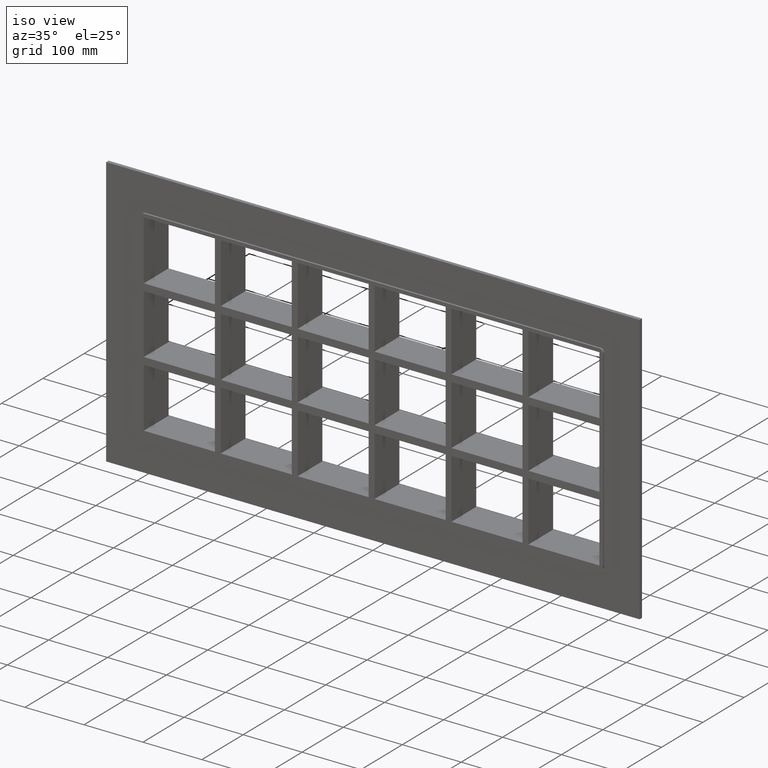
[diagram: clean part render]
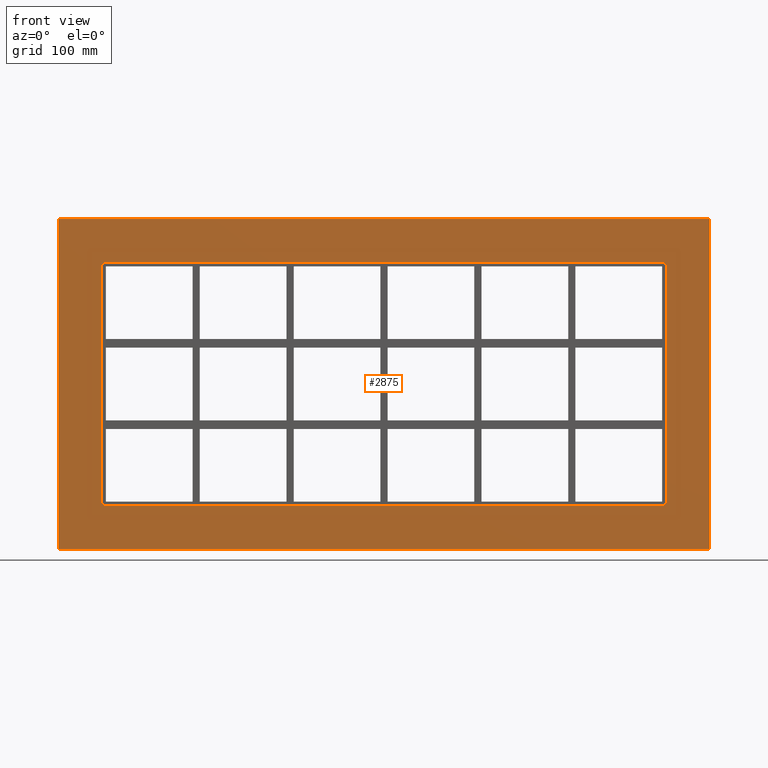
[diagram: tour spotlight — one face highlighted and labeled with its STEP entity id]
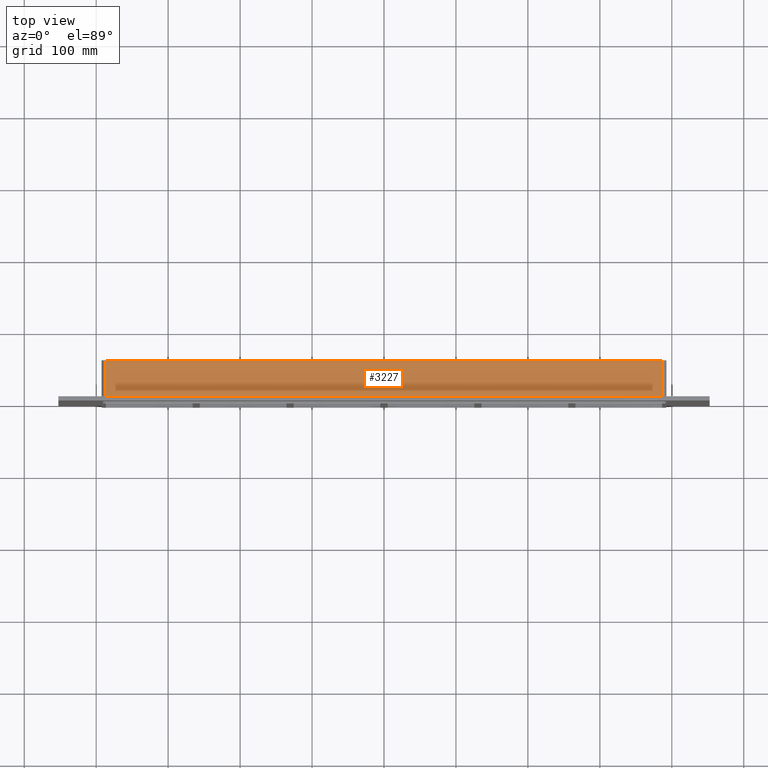
[diagram: tour spotlight — one face highlighted and labeled with its STEP entity id]
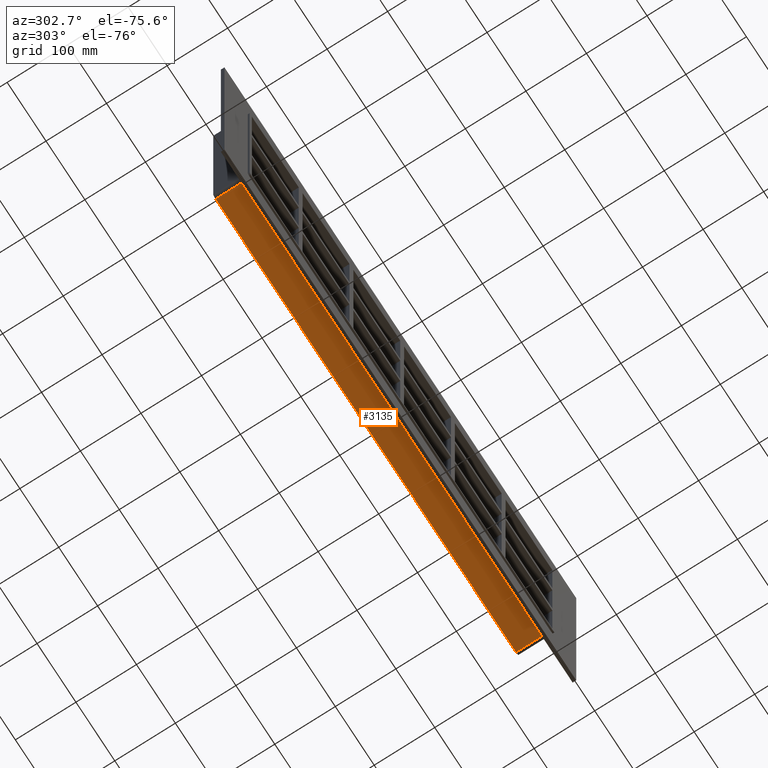
[diagram: tour spotlight — one face highlighted and labeled with its STEP entity id]
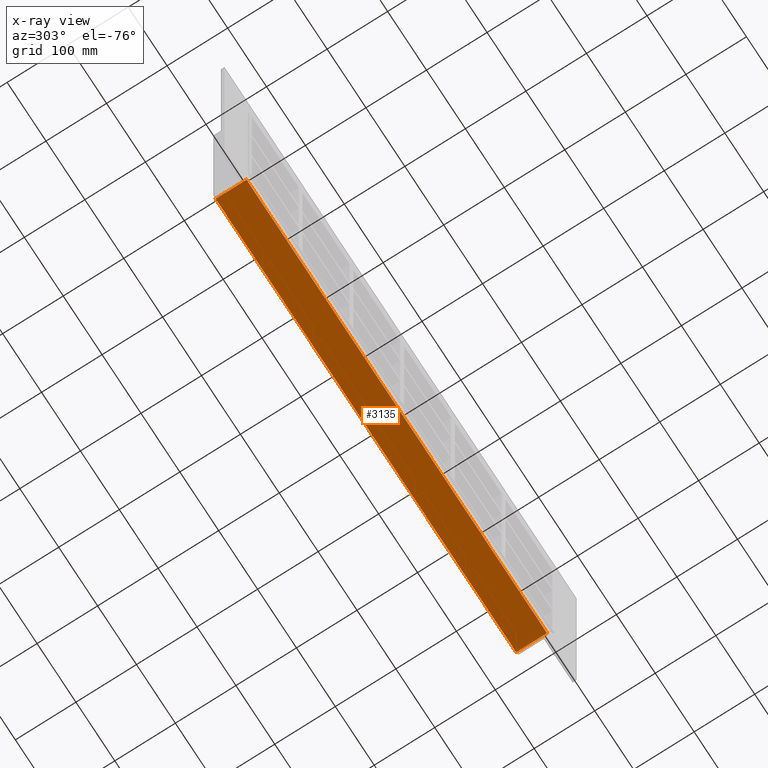
[diagram: x-ray of the same camera — body ghosted, this tour face saturated]
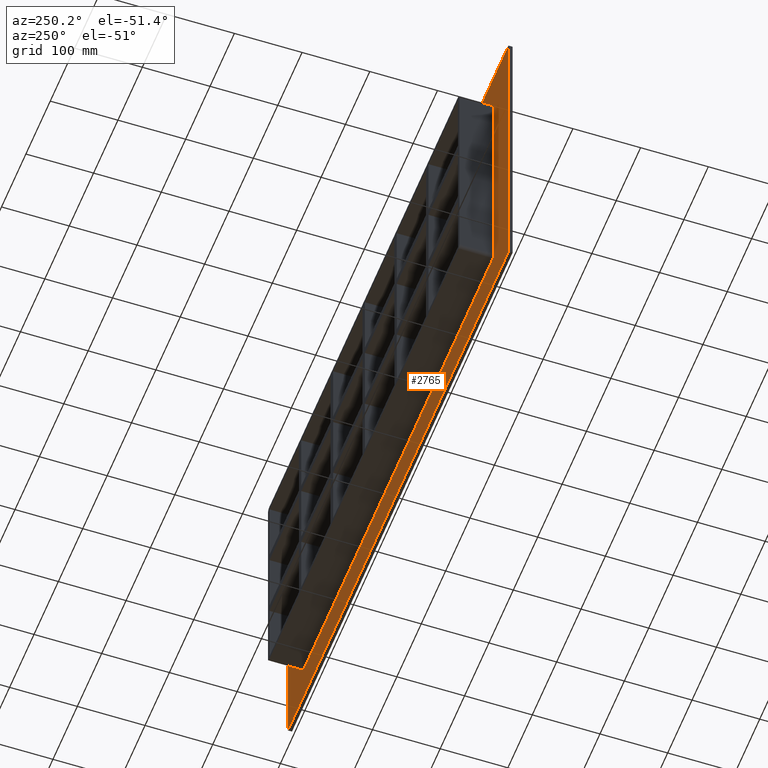
[diagram: tour spotlight — one face highlighted and labeled with its STEP entity id]
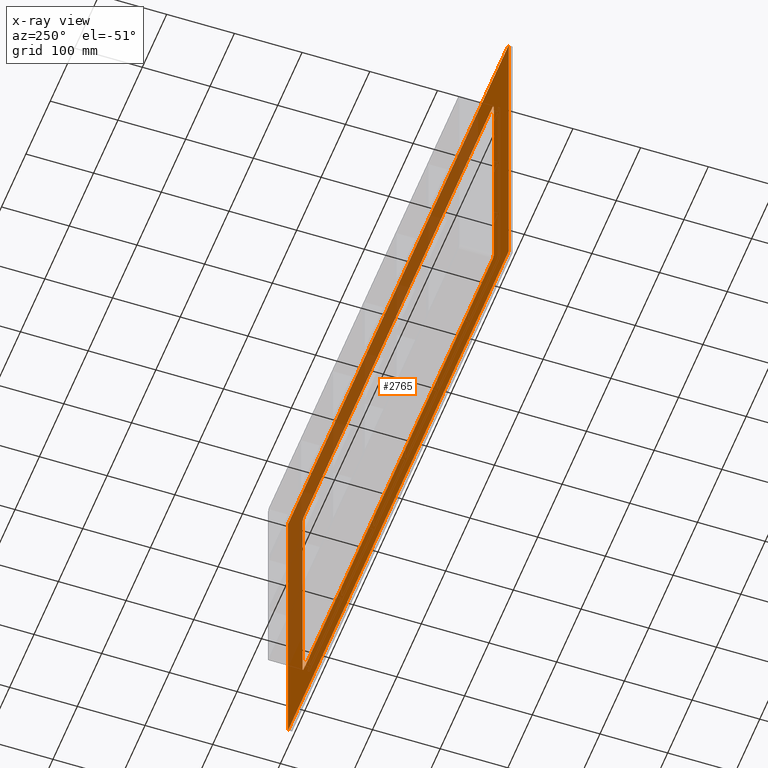
[diagram: x-ray of the same camera — body ghosted, this tour face saturated]
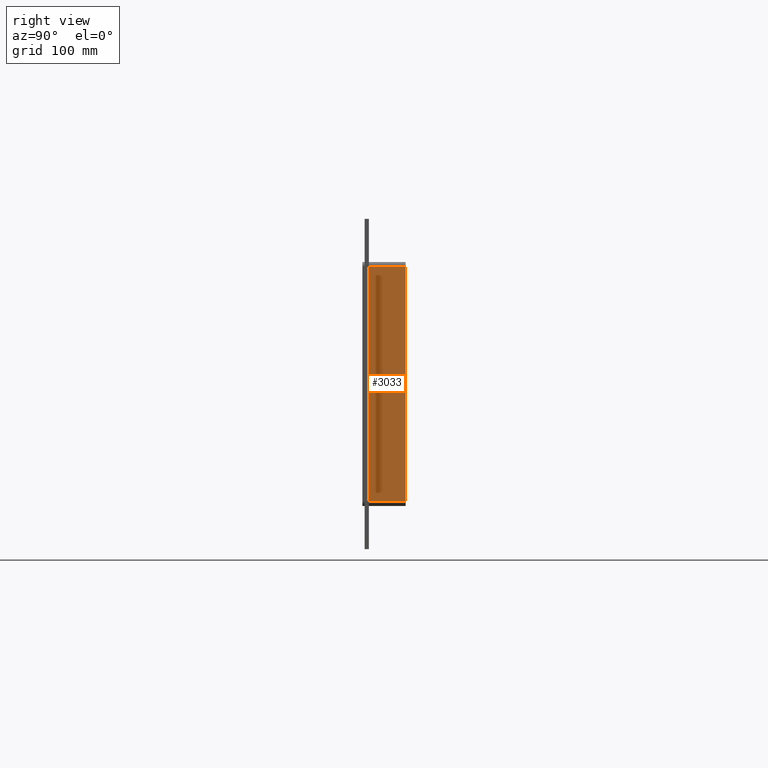
[diagram: tour spotlight — one face highlighted and labeled with its STEP entity id]
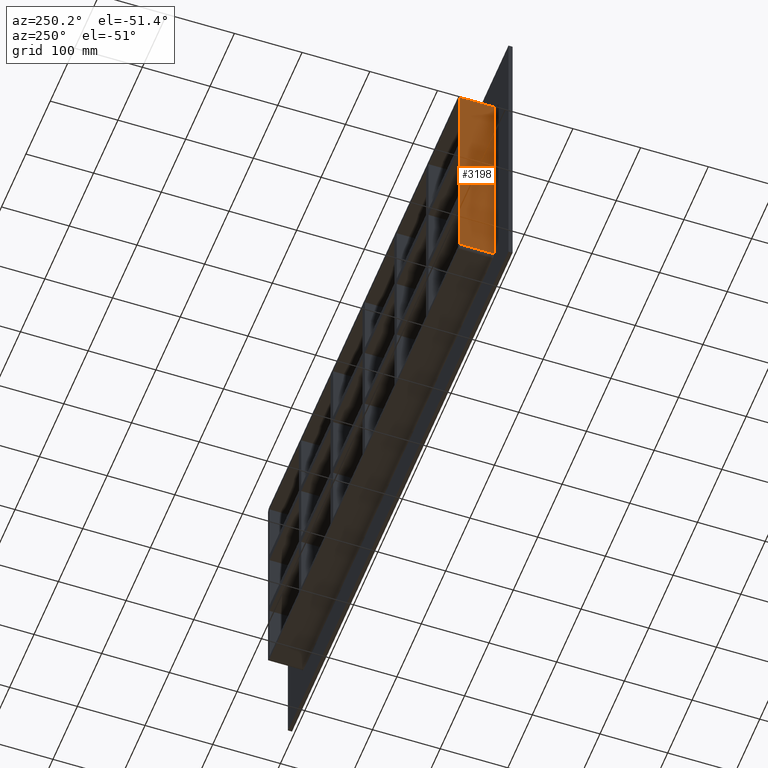
[diagram: tour spotlight — one face highlighted and labeled with its STEP entity id]
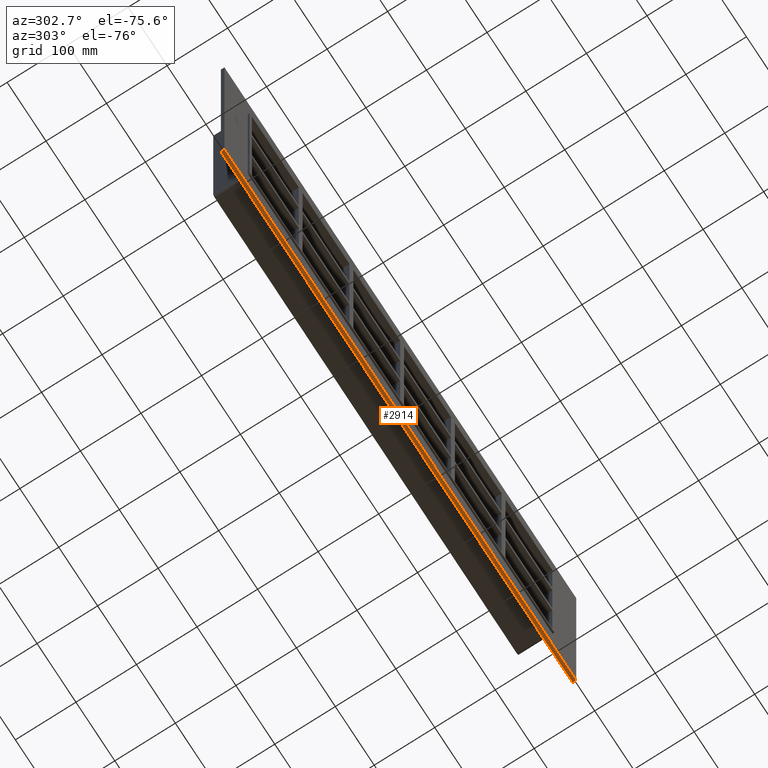
[diagram: tour spotlight — one face highlighted and labeled with its STEP entity id]
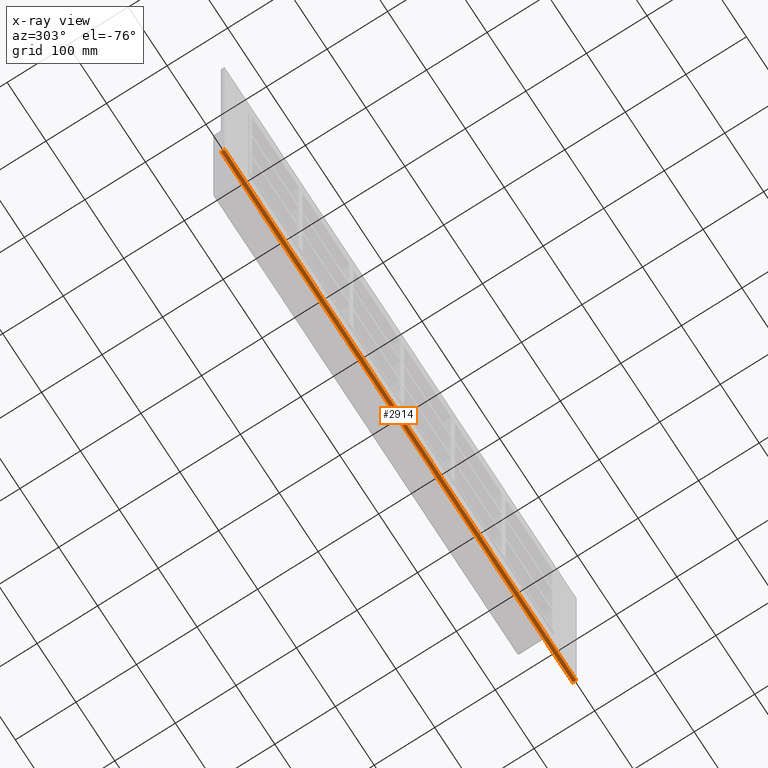
[diagram: x-ray of the same camera — body ghosted, this tour face saturated]
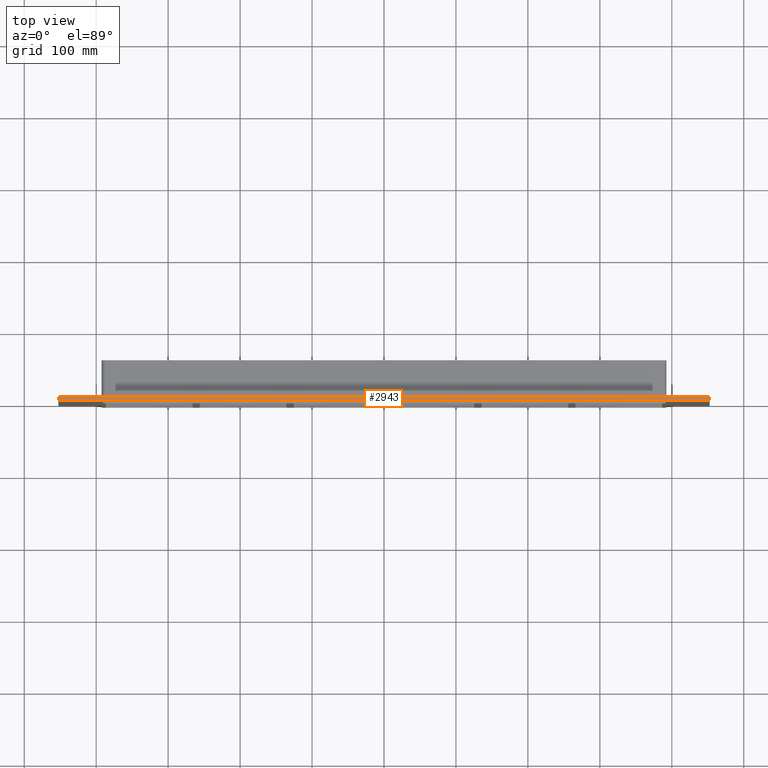
[diagram: tour spotlight — one face highlighted and labeled with its STEP entity id]
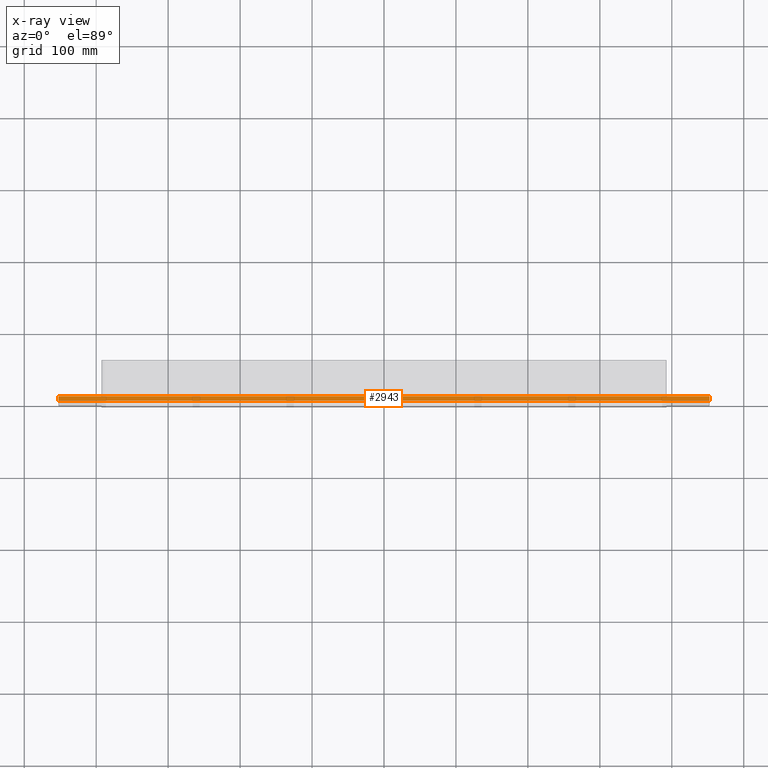
[diagram: x-ray of the same camera — body ghosted, this tour face saturated]
A machine part: a face-by-face anatomy tour. The part has 96 B-rep faces; the first image is the clean iso view, then the 8 largest visible faces are spotlighted one at a time (largest first), each with its STEP entity span.

Face 1 — front view, entity #2875. In plain terms, the highlighted planar face has unit normal (0, 1, 0).
Definition (entity closure, byte-faithful):
#2766=CARTESIAN_POINT('',(0.0,0.0,0.0));
#2767=DIRECTION('',(0.0,1.0,0.0));
#2768=DIRECTION('',(0.0,0.0,1.0));
#2769=AXIS2_PLACEMENT_3D('',#2766,#2767,#2768);
#2770=PLANE('',#2769);
#2771=CARTESIAN_POINT('',(-452.50000000000006,0.0,229.50000000000003));
#2772=VERTEX_POINT('',#2771);
#2773=CARTESIAN_POINT('',(452.50000000000006,0.0,229.50000000000003));
#2774=VERTEX_POINT('',#2773);
#2775=CARTESIAN_POINT('',(-452.50000000000006,0.0,229.50000000000003));
#2776=DIRECTION('',(1.0,0.0,0.0));
#2777=VECTOR('',#2776,905.00000000000011);
#2778=LINE('',#2775,#2777);
#2779=EDGE_CURVE('',#2772,#2774,#2778,.T.);
#2780=ORIENTED_EDGE('',*,*,#2779,.F.);
#2781=CARTESIAN_POINT('',(-452.50000000000006,0.0,-229.50000000000003));
#2782=VERTEX_POINT('',#2781);
#2783=CARTESIAN_POINT('',(-452.50000000000006,0.0,-229.50000000000003));
#2784=DIRECTION('',(0.0,0.0,1.0));
#2785=VECTOR('',#2784,459.00000000000006);
#2786=LINE('',#2783,#2785);
#2787=EDGE_CURVE('',#2782,#2772,#2786,.T.);
#2788=ORIENTED_EDGE('',*,*,#2787,.F.);
#2789=CARTESIAN_POINT('',(452.50000000000006,0.0,-229.50000000000003));
#2790=VERTEX_POINT('',#2789);
#2791=CARTESIAN_POINT('',(452.50000000000006,0.0,-229.50000000000003));
#2792=DIRECTION('',(-1.0,0.0,0.0));
#2793=VECTOR('',#2792,905.00000000000011);
#2794=LINE('',#2791,#2793);
#2795=EDGE_CURVE('',#2790,#2782,#2794,.T.);
#2796=ORIENTED_EDGE('',*,*,#2795,.F.);
#2797=CARTESIAN_POINT('',(452.50000000000006,0.0,229.50000000000003));
#2798=DIRECTION('',(0.0,0.0,-1.0));
#2799=VECTOR('',#2798,459.00000000000006);
#2800=LINE('',#2797,#2799);
#2801=EDGE_CURVE('',#2774,#2790,#2800,.T.);
#2802=ORIENTED_EDGE('',*,*,#2801,.F.);
#2803=EDGE_LOOP('',(#2780,#2788,#2796,#2802));
#2804=FACE_OUTER_BOUND('',#2803,.T.);
#2805=CARTESIAN_POINT('',(-392.50000000000011,0.0,-163.5));
#2806=VERTEX_POINT('',#2805);
#2807=CARTESIAN_POINT('',(-386.50000000000011,0.0,-169.50000000000003));
#2808=VERTEX_POINT('',#2807);
#2809=CARTESIAN_POINT('',(-386.50000000000011,0.0,-163.5));
#2810=DIRECTION('',(0.0,-1.0,0.0));
#2811=DIRECTION('',(-0.707106781186552,0.0,-0.707106781186543));
#2812=AXIS2_PLACEMENT_3D('',#2809,#2810,#2811);
#2813=CIRCLE('',#2812,6.0);
#2814=EDGE_CURVE('',#2806,#2808,#2813,.T.);
#2815=ORIENTED_EDGE('',*,*,#2814,.F.);
#2816=CARTESIAN_POINT('',(-392.50000000000011,0.0,163.5));
#2817=VERTEX_POINT('',#2816);
#2818=CARTESIAN_POINT('',(-392.50000000000011,0.0,163.5));
#2819=DIRECTION('',(0.0,0.0,-1.0));
#2820=VECTOR('',#2819,327.0);
#2821=LINE('',#2818,#2820);
#2822=EDGE_CURVE('',#2817,#2806,#2821,.T.);
#2823=ORIENTED_EDGE('',*,*,#2822,.F.);
#2824=CARTESIAN_POINT('',(-386.50000000000023,0.0,169.50000000000003));
#2825=VERTEX_POINT('',#2824);
#2826=CARTESIAN_POINT('',(-386.50000000000023,0.0,163.5));
#2827=DIRECTION('',(0.0,-1.0,0.0));
#2828=DIRECTION('',(-0.707106781186543,0.0,0.707106781186552));
#2829=AXIS2_PLACEMENT_3D('',#2826,#2827,#2828);
#2830=CIRCLE('',#2829,6.000000000000001);
#2831=EDGE_CURVE('',#2825,#2817,#2830,.T.);
#2832=ORIENTED_EDGE('',*,*,#2831,.F.);
#2833=CARTESIAN_POINT('',(386.50000000000006,0.0,169.50000000000003));
#2834=VERTEX_POINT('',#2833);
#2835=CARTESIAN_POINT('',(386.50000000000006,0.0,169.50000000000003));
#2836=DIRECTION('',(-1.0,0.0,0.0));
#2837=VECTOR('',#2836,773.00000000000023);
#2838=LINE('',#2835,#2837);
#2839=EDGE_CURVE('',#2834,#2825,#2838,.T.);
#2840=ORIENTED_EDGE('',*,*,#2839,.F.);
#2841=CARTESIAN_POINT('',(392.50000000000006,0.0,163.5));
#2842=VERTEX_POINT('',#2841);
#2843=CARTESIAN_POINT('',(386.50000000000006,0.0,163.5));
#2844=DIRECTION('',(0.0,-1.0,0.0));
#2845=DIRECTION('',(0.707106781186543,0.0,0.707106781186552));
#2846=AXIS2_PLACEMENT_3D('',#2843,#2844,#2845);
#2847=CIRCLE('',#2846,6.000000000000001);
#2848=EDGE_CURVE('',#2842,#2834,#2847,.T.);
#2849=ORIENTED_EDGE('',*,*,#2848,.F.);
#2850=CARTESIAN_POINT('',(392.50000000000006,0.0,-163.5));
#2851=VERTEX_POINT('',#2850);
#2852=CARTESIAN_POINT('',(392.50000000000006,0.0,-163.5));
#2853=DIRECTION('',(0.0,0.0,1.0));
#2854=VECTOR('',#2853,327.0);
#2855=LINE('',#2852,#2854);
#2856=EDGE_CURVE('',#2851,#2842,#2855,.T.);
#2857=ORIENTED_EDGE('',*,*,#2856,.F.);
#2858=CARTESIAN_POINT('',(386.50000000000006,0.0,-169.50000000000003));
#2859=VERTEX_POINT('',#2858);
#2860=CARTESIAN_POINT('',(386.50000000000006,0.0,-163.5));
#2861=DIRECTION('',(0.0,-1.0,0.0));
#2862=DIRECTION('',(0.707106781186543,0.0,-0.707106781186552));
#2863=AXIS2_PLACEMENT_3D('',#2860,#2861,#2862);
#2864=CIRCLE('',#2863,6.000000000000001);
#2865=EDGE_CURVE('',#2859,#2851,#2864,.T.);
#2866=ORIENTED_EDGE('',*,*,#2865,.F.);
#2867=CARTESIAN_POINT('',(-386.50000000000023,0.0,-169.50000000000003));
#2868=DIRECTION('',(1.0,0.0,0.0));
#2869=VECTOR('',#2868,773.00000000000023);
#2870=LINE('',#2867,#2869);
#2871=EDGE_CURVE('',#2808,#2859,#2870,.T.);
#2872=ORIENTED_EDGE('',*,*,#2871,.F.);
#2873=EDGE_LOOP('',(#2815,#2823,#2832,#2840,#2849,#2857,#2866,#2872));
#2874=FACE_BOUND('',#2873,.T.);
#2875=ADVANCED_FACE('',(#2804,#2874),#2770,.F.);

Face 2 — top view, entity #3227. In plain terms, the highlighted planar face has unit normal (0, 0, 1).
Definition (entity closure, byte-faithful):
#1023=CARTESIAN_POINT('',(-386.50000000000023,57.0,169.50000000000003));
#1024=VERTEX_POINT('',#1023);
#1032=CARTESIAN_POINT('',(386.50000000000011,57.0,169.50000000000003));
#1033=VERTEX_POINT('',#1032);
#1034=CARTESIAN_POINT('',(-386.50000000000023,57.0,169.50000000000003));
#1035=DIRECTION('',(1.0,0.0,0.0));
#1036=VECTOR('',#1035,773.00000000000034);
#1037=LINE('',#1034,#1036);
#1038=EDGE_CURVE('',#1024,#1033,#1037,.T.);
#2731=CARTESIAN_POINT('',(386.50000000000006,6.000000000000001,169.50000000000003));
#2732=VERTEX_POINT('',#2731);
#2740=CARTESIAN_POINT('',(-386.50000000000023,6.000000000000001,169.50000000000003));
#2741=VERTEX_POINT('',#2740);
#2742=CARTESIAN_POINT('',(-386.50000000000017,6.000000000000001,169.50000000000003));
#2743=DIRECTION('',(1.0,0.0,0.0));
#2744=VECTOR('',#2743,773.00000000000023);
#2745=LINE('',#2742,#2744);
#2746=EDGE_CURVE('',#2741,#2732,#2745,.T.);
#2991=CARTESIAN_POINT('',(386.50000000000006,57.0,169.50000000000003));
#2992=DIRECTION('',(0.0,-1.0,0.0));
#2993=VECTOR('',#2992,51.0);
#2994=LINE('',#2991,#2993);
#2995=EDGE_CURVE('',#1033,#2732,#2994,.T.);
#3205=CARTESIAN_POINT('',(-386.50000000000023,6.000000000000001,169.50000000000003));
#3206=DIRECTION('',(0.0,1.0,0.0));
#3207=VECTOR('',#3206,51.0);
#3208=LINE('',#3205,#3207);
#3209=EDGE_CURVE('',#2741,#1024,#3208,.T.);
#3216=CARTESIAN_POINT('',(-392.50000000000011,0.0,169.50000000000003));
#3217=DIRECTION('',(0.0,0.0,1.0));
#3218=DIRECTION('',(1.0,0.0,0.0));
#3219=AXIS2_PLACEMENT_3D('',#3216,#3217,#3218);
#3220=PLANE('',#3219);
#3221=ORIENTED_EDGE('',*,*,#2746,.T.);
#3222=ORIENTED_EDGE('',*,*,#2995,.F.);
#3223=ORIENTED_EDGE('',*,*,#1038,.F.);
#3224=ORIENTED_EDGE('',*,*,#3209,.F.);
#3225=EDGE_LOOP('',(#3221,#3222,#3223,#3224));
#3226=FACE_OUTER_BOUND('',#3225,.T.);
#3227=ADVANCED_FACE('',(#3226),#3220,.T.);

Face 3 — auxiliary view, entity #3135. An x-ray twin of the same camera follows (body ghosted, this face saturated) — the face is partly hidden behind the body. In plain terms, the highlighted planar face has unit normal (0, 0, -1).
Definition (entity closure, byte-faithful):
#987=CARTESIAN_POINT('',(386.50000000000006,57.0,-169.50000000000003));
#988=VERTEX_POINT('',#987);
#998=CARTESIAN_POINT('',(-386.50000000000023,57.0,-169.50000000000003));
#999=VERTEX_POINT('',#998);
#1000=CARTESIAN_POINT('',(386.5,57.0,-169.50000000000003));
#1001=DIRECTION('',(-1.0,0.0,0.0));
#1002=VECTOR('',#1001,773.00000000000023);
#1003=LINE('',#1000,#1002);
#1004=EDGE_CURVE('',#988,#999,#1003,.T.);
#2695=CARTESIAN_POINT('',(-386.50000000000011,6.000000000000001,-169.50000000000003));
#2696=VERTEX_POINT('',#2695);
#2706=CARTESIAN_POINT('',(386.50000000000006,6.000000000000001,-169.50000000000003));
#2707=VERTEX_POINT('',#2706);
#2708=CARTESIAN_POINT('',(386.50000000000006,6.000000000000001,-169.50000000000003));
#2709=DIRECTION('',(-1.0,0.0,0.0));
#2710=VECTOR('',#2709,773.00000000000023);
#2711=LINE('',#2708,#2710);
#2712=EDGE_CURVE('',#2707,#2696,#2711,.T.);
#3074=CARTESIAN_POINT('',(386.50000000000006,6.000000000000001,-169.50000000000003));
#3075=DIRECTION('',(0.0,1.0,0.0));
#3076=VECTOR('',#3075,51.0);
#3077=LINE('',#3074,#3076);
#3078=EDGE_CURVE('',#2707,#988,#3077,.T.);
#3119=CARTESIAN_POINT('',(392.50000000000006,0.0,-169.50000000000003));
#3120=DIRECTION('',(0.0,0.0,-1.0));
#3121=DIRECTION('',(-1.0,0.0,0.0));
#3122=AXIS2_PLACEMENT_3D('',#3119,#3120,#3121);
#3123=PLANE('',#3122);
#3124=ORIENTED_EDGE('',*,*,#2712,.T.);
#3125=CARTESIAN_POINT('',(-386.50000000000011,57.0,-169.50000000000003));
#3126=DIRECTION('',(0.0,-1.0,0.0));
#3127=VECTOR('',#3126,51.0);
#3128=LINE('',#3125,#3127);
#3129=EDGE_CURVE('',#999,#2696,#3128,.T.);
#3130=ORIENTED_EDGE('',*,*,#3129,.F.);
#3131=ORIENTED_EDGE('',*,*,#1004,.F.);
#3132=ORIENTED_EDGE('',*,*,#3078,.F.);
#3133=EDGE_LOOP('',(#3124,#3130,#3131,#3132));
#3134=FACE_OUTER_BOUND('',#3133,.T.);
#3135=ADVANCED_FACE('',(#3134),#3123,.T.);

Face 4 — auxiliary view, entity #2765. An x-ray twin of the same camera follows (body ghosted, this face saturated) — the face is partly hidden behind the body. In plain terms, the highlighted planar face has unit normal (0, 1, 0).
Definition (entity closure, byte-faithful):
#2656=CARTESIAN_POINT('',(0.0,6.000000000000001,0.0));
#2657=DIRECTION('',(0.0,1.0,0.0));
#2658=DIRECTION('',(0.0,0.0,1.0));
#2659=AXIS2_PLACEMENT_3D('',#2656,#2657,#2658);
#2660=PLANE('',#2659);
#2661=CARTESIAN_POINT('',(-452.50000000000006,6.000000000000001,229.50000000000003));
#2662=VERTEX_POINT('',#2661);
#2663=CARTESIAN_POINT('',(452.50000000000006,6.000000000000001,229.50000000000003));
#2664=VERTEX_POINT('',#2663);
#2665=CARTESIAN_POINT('',(-452.50000000000006,6.000000000000001,229.50000000000003));
#2666=DIRECTION('',(1.0,0.0,0.0));
#2667=VECTOR('',#2666,905.00000000000011);
#2668=LINE('',#2665,#2667);
#2669=EDGE_CURVE('',#2662,#2664,#2668,.T.);
#2670=ORIENTED_EDGE('',*,*,#2669,.T.);
#2671=CARTESIAN_POINT('',(452.50000000000006,6.000000000000001,-229.50000000000003));
#2672=VERTEX_POINT('',#2671);
#2673=CARTESIAN_POINT('',(452.50000000000006,6.000000000000001,229.50000000000003));
#2674=DIRECTION('',(0.0,0.0,-1.0));
#2675=VECTOR('',#2674,459.00000000000006);
#2676=LINE('',#2673,#2675);
#2677=EDGE_CURVE('',#2664,#2672,#2676,.T.);
#2678=ORIENTED_EDGE('',*,*,#2677,.T.);
#2679=CARTESIAN_POINT('',(-452.50000000000006,6.000000000000001,-229.50000000000003));
#2680=VERTEX_POINT('',#2679);
#2681=CARTESIAN_POINT('',(452.50000000000006,6.000000000000001,-229.50000000000003));
#2682=DIRECTION('',(-1.0,0.0,0.0));
#2683=VECTOR('',#2682,905.00000000000011);
#2684=LINE('',#2681,#2683);
#2685=EDGE_CURVE('',#2672,#2680,#2684,.T.);
#2686=ORIENTED_EDGE('',*,*,#2685,.T.);
#2687=CARTESIAN_POINT('',(-452.50000000000006,6.000000000000001,-229.50000000000003));
#2688=DIRECTION('',(0.0,0.0,1.0));
#2689=VECTOR('',#2688,459.00000000000006);
#2690=LINE('',#2687,#2689);
#2691=EDGE_CURVE('',#2680,#2662,#2690,.T.);
#2692=ORIENTED_EDGE('',*,*,#2691,.T.);
#2693=EDGE_LOOP('',(#2670,#2678,#2686,#2692));
#2694=FACE_OUTER_BOUND('',#2693,.T.);
#2695=CARTESIAN_POINT('',(-386.50000000000011,6.000000000000001,-169.50000000000003));
#2696=VERTEX_POINT('',#2695);
#2697=CARTESIAN_POINT('',(-392.50000000000011,6.000000000000001,-163.5));
#2698=VERTEX_POINT('',#2697);
#2699=CARTESIAN_POINT('',(-386.50000000000011,6.000000000000001,-163.5));
#2700=DIRECTION('',(0.0,1.0,0.0));
#2701=DIRECTION('',(-0.707106781186552,0.0,-0.707106781186543));
#2702=AXIS2_PLACEMENT_3D('',#2699,#2700,#2701);
#2703=CIRCLE('',#2702,6.0);
#2704=EDGE_CURVE('',#2696,#2698,#2703,.T.);
#2705=ORIENTED_EDGE('',*,*,#2704,.F.);
#2706=CARTESIAN_POINT('',(386.50000000000006,6.000000000000001,-169.50000000000003));
#2707=VERTEX_POINT('',#2706);
#2708=CARTESIAN_POINT('',(386.50000000000006,6.000000000000001,-169.50000000000003));
#2709=DIRECTION('',(-1.0,0.0,0.0));
#2710=VECTOR('',#2709,773.00000000000023);
#2711=LINE('',#2708,#2710);
#2712=EDGE_CURVE('',#2707,#2696,#2711,.T.);
#2713=ORIENTED_EDGE('',*,*,#2712,.F.);
#2714=CARTESIAN_POINT('',(392.50000000000006,6.000000000000001,-163.5));
#2715=VERTEX_POINT('',#2714);
#2716=CARTESIAN_POINT('',(386.50000000000006,6.000000000000001,-163.5));
#2717=DIRECTION('',(0.0,1.0,0.0));
#2718=DIRECTION('',(0.707106781186543,0.0,-0.707106781186552));
#2719=AXIS2_PLACEMENT_3D('',#2716,#2717,#2718);
#2720=CIRCLE('',#2719,6.000000000000001);
#2721=EDGE_CURVE('',#2715,#2707,#2720,.T.);
#2722=ORIENTED_EDGE('',*,*,#2721,.F.);
#2723=CARTESIAN_POINT('',(392.50000000000006,6.000000000000001,163.5));
#2724=VERTEX_POINT('',#2723);
#2725=CARTESIAN_POINT('',(392.50000000000006,6.000000000000001,163.5));
#2726=DIRECTION('',(0.0,0.0,-1.0));
#2727=VECTOR('',#2726,327.0);
#2728=LINE('',#2725,#2727);
#2729=EDGE_CURVE('',#2724,#2715,#2728,.T.);
#2730=ORIENTED_EDGE('',*,*,#2729,.F.);
#2731=CARTESIAN_POINT('',(386.50000000000006,6.000000000000001,169.50000000000003));
#2732=VERTEX_POINT('',#2731);
#2733=CARTESIAN_POINT('',(386.50000000000006,6.000000000000001,163.5));
#2734=DIRECTION('',(0.0,1.0,0.0));
#2735=DIRECTION('',(0.707106781186543,0.0,0.707106781186552));
#2736=AXIS2_PLACEMENT_3D('',#2733,#2734,#2735);
#2737=CIRCLE('',#2736,6.000000000000001);
#2738=EDGE_CURVE('',#2732,#2724,#2737,.T.);
#2739=ORIENTED_EDGE('',*,*,#2738,.F.);
#2740=CARTESIAN_POINT('',(-386.50000000000023,6.000000000000001,169.50000000000003));
#2741=VERTEX_POINT('',#2740);
#2742=CARTESIAN_POINT('',(-386.50000000000017,6.000000000000001,169.50000000000003));
#2743=DIRECTION('',(1.0,0.0,0.0));
#2744=VECTOR('',#2743,773.00000000000023);
#2745=LINE('',#2742,#2744);
#2746=EDGE_CURVE('',#2741,#2732,#2745,.T.);
#2747=ORIENTED_EDGE('',*,*,#2746,.F.);
#2748=CARTESIAN_POINT('',(-392.50000000000011,6.000000000000001,163.5));
#2749=VERTEX_POINT('',#2748);
#2750=CARTESIAN_POINT('',(-386.50000000000023,6.000000000000001,163.5));
#2751=DIRECTION('',(0.0,1.0,0.0));
#2752=DIRECTION('',(-0.707106781186543,0.0,0.707106781186552));
#2753=AXIS2_PLACEMENT_3D('',#2750,#2751,#2752);
#2754=CIRCLE('',#2753,6.000000000000001);
#2755=EDGE_CURVE('',#2749,#2741,#2754,.T.);
#2756=ORIENTED_EDGE('',*,*,#2755,.F.);
#2757=CARTESIAN_POINT('',(-392.50000000000011,6.000000000000001,-163.5));
#2758=DIRECTION('',(0.0,0.0,1.0));
#2759=VECTOR('',#2758,327.0);
#2760=LINE('',#2757,#2759);
#2761=EDGE_CURVE('',#2698,#2749,#2760,.T.);
#2762=ORIENTED_EDGE('',*,*,#2761,.F.);
#2763=EDGE_LOOP('',(#2705,#2713,#2722,#2730,#2739,#2747,#2756,#2762));
#2764=FACE_BOUND('',#2763,.T.);
#2765=ADVANCED_FACE('',(#2694,#2764),#2660,.T.);

Face 5 — right view, entity #3033. In plain terms, the highlighted planar face has unit normal (1, 0, 0).
Definition (entity closure, byte-faithful):
#989=CARTESIAN_POINT('',(392.50000000000006,57.0,-163.5));
#990=VERTEX_POINT('',#989);
#1040=CARTESIAN_POINT('',(392.50000000000006,57.0,163.5));
#1041=VERTEX_POINT('',#1040);
#1049=CARTESIAN_POINT('',(392.50000000000006,57.0,163.5));
#1050=DIRECTION('',(0.0,0.0,-1.0));
#1051=VECTOR('',#1050,327.0);
#1052=LINE('',#1049,#1051);
#1053=EDGE_CURVE('',#1041,#990,#1052,.T.);
#2714=CARTESIAN_POINT('',(392.50000000000006,6.000000000000001,-163.5));
#2715=VERTEX_POINT('',#2714);
#2723=CARTESIAN_POINT('',(392.50000000000006,6.000000000000001,163.5));
#2724=VERTEX_POINT('',#2723);
#2725=CARTESIAN_POINT('',(392.50000000000006,6.000000000000001,163.5));
#2726=DIRECTION('',(0.0,0.0,-1.0));
#2727=VECTOR('',#2726,327.0);
#2728=LINE('',#2725,#2727);
#2729=EDGE_CURVE('',#2724,#2715,#2728,.T.);
#2984=CARTESIAN_POINT('',(392.50000000000006,6.000000000000001,163.5));
#2985=DIRECTION('',(0.0,1.0,0.0));
#2986=VECTOR('',#2985,51.0);
#2987=LINE('',#2984,#2986);
#2988=EDGE_CURVE('',#2724,#1041,#2987,.T.);
#3017=CARTESIAN_POINT('',(392.50000000000006,0.0,169.50000000000003));
#3018=DIRECTION('',(1.0,0.0,0.0));
#3019=DIRECTION('',(0.0,0.0,-1.0));
#3020=AXIS2_PLACEMENT_3D('',#3017,#3018,#3019);
#3021=PLANE('',#3020);
#3022=ORIENTED_EDGE('',*,*,#2729,.T.);
#3023=CARTESIAN_POINT('',(392.50000000000006,57.0,-163.5));
#3024=DIRECTION('',(0.0,-1.0,0.0));
#3025=VECTOR('',#3024,51.0);
#3026=LINE('',#3023,#3025);
#3027=EDGE_CURVE('',#990,#2715,#3026,.T.);
#3028=ORIENTED_EDGE('',*,*,#3027,.F.);
#3029=ORIENTED_EDGE('',*,*,#1053,.F.);
#3030=ORIENTED_EDGE('',*,*,#2988,.F.);
#3031=EDGE_LOOP('',(#3022,#3028,#3029,#3030));
#3032=FACE_OUTER_BOUND('',#3031,.T.);
#3033=ADVANCED_FACE('',(#3032),#3021,.T.);

Face 6 — auxiliary view, entity #3198. In plain terms, the highlighted planar face has unit normal (-1, 0, 0).
Definition (entity closure, byte-faithful):
#1006=CARTESIAN_POINT('',(-392.50000000000011,57.0,-163.5));
#1007=VERTEX_POINT('',#1006);
#1015=CARTESIAN_POINT('',(-392.50000000000011,57.0,163.5));
#1016=VERTEX_POINT('',#1015);
#1017=CARTESIAN_POINT('',(-392.50000000000011,57.0,-163.5));
#1018=DIRECTION('',(0.0,0.0,1.0));
#1019=VECTOR('',#1018,327.0);
#1020=LINE('',#1017,#1019);
#1021=EDGE_CURVE('',#1007,#1016,#1020,.T.);
#2697=CARTESIAN_POINT('',(-392.50000000000011,6.000000000000001,-163.5));
#2698=VERTEX_POINT('',#2697);
#2748=CARTESIAN_POINT('',(-392.50000000000011,6.000000000000001,163.5));
#2749=VERTEX_POINT('',#2748);
#2757=CARTESIAN_POINT('',(-392.50000000000011,6.000000000000001,-163.5));
#2758=DIRECTION('',(0.0,0.0,1.0));
#2759=VECTOR('',#2758,327.0);
#2760=LINE('',#2757,#2759);
#2761=EDGE_CURVE('',#2698,#2749,#2760,.T.);
#3171=CARTESIAN_POINT('',(-392.50000000000011,6.000000000000001,-163.5));
#3172=DIRECTION('',(0.0,1.0,0.0));
#3173=VECTOR('',#3172,51.0);
#3174=LINE('',#3171,#3173);
#3175=EDGE_CURVE('',#2698,#1007,#3174,.T.);
#3182=CARTESIAN_POINT('',(-392.50000000000011,0.0,-169.50000000000003));
#3183=DIRECTION('',(-1.0,0.0,0.0));
#3184=DIRECTION('',(0.0,0.0,1.0));
#3185=AXIS2_PLACEMENT_3D('',#3182,#3183,#3184);
#3186=PLANE('',#3185);
#3187=ORIENTED_EDGE('',*,*,#2761,.T.);
#3188=CARTESIAN_POINT('',(-392.50000000000011,57.0,163.5));
#3189=DIRECTION('',(0.0,-1.0,0.0));
#3190=VECTOR('',#3189,51.0);
#3191=LINE('',#3188,#3190);
#3192=EDGE_CURVE('',#1016,#2749,#3191,.T.);
#3193=ORIENTED_EDGE('',*,*,#3192,.F.);
#3194=ORIENTED_EDGE('',*,*,#1021,.F.);
#3195=ORIENTED_EDGE('',*,*,#3175,.F.);
#3196=EDGE_LOOP('',(#3187,#3193,#3194,#3195));
#3197=FACE_OUTER_BOUND('',#3196,.T.);
#3198=ADVANCED_FACE('',(#3197),#3186,.T.);

Face 7 — auxiliary view, entity #2914. An x-ray twin of the same camera follows (body ghosted, this face saturated) — the face is partly hidden behind the body. In plain terms, the highlighted planar face has unit normal (0, 0, -1).
Definition (entity closure, byte-faithful):
#2671=CARTESIAN_POINT('',(452.50000000000006,6.000000000000001,-229.50000000000003));
#2672=VERTEX_POINT('',#2671);
#2679=CARTESIAN_POINT('',(-452.50000000000006,6.000000000000001,-229.50000000000003));
#2680=VERTEX_POINT('',#2679);
#2681=CARTESIAN_POINT('',(452.50000000000006,6.000000000000001,-229.50000000000003));
#2682=DIRECTION('',(-1.0,0.0,0.0));
#2683=VECTOR('',#2682,905.00000000000011);
#2684=LINE('',#2681,#2683);
#2685=EDGE_CURVE('',#2672,#2680,#2684,.T.);
#2781=CARTESIAN_POINT('',(-452.50000000000006,0.0,-229.50000000000003));
#2782=VERTEX_POINT('',#2781);
#2789=CARTESIAN_POINT('',(452.50000000000006,0.0,-229.50000000000003));
#2790=VERTEX_POINT('',#2789);
#2791=CARTESIAN_POINT('',(452.50000000000006,0.0,-229.50000000000003));
#2792=DIRECTION('',(-1.0,0.0,0.0));
#2793=VECTOR('',#2792,905.00000000000011);
#2794=LINE('',#2791,#2793);
#2795=EDGE_CURVE('',#2790,#2782,#2794,.T.);
#2889=CARTESIAN_POINT('',(-452.50000000000006,0.0,-229.50000000000003));
#2890=DIRECTION('',(0.0,1.0,0.0));
#2891=VECTOR('',#2890,6.000000000000001);
#2892=LINE('',#2889,#2891);
#2893=EDGE_CURVE('',#2782,#2680,#2892,.T.);
#2898=CARTESIAN_POINT('',(452.50000000000006,0.0,-229.50000000000003));
#2899=DIRECTION('',(0.0,0.0,-1.0));
#2900=DIRECTION('',(-1.0,0.0,0.0));
#2901=AXIS2_PLACEMENT_3D('',#2898,#2899,#2900);
#2902=PLANE('',#2901);
#2903=ORIENTED_EDGE('',*,*,#2795,.T.);
#2904=ORIENTED_EDGE('',*,*,#2893,.T.);
#2905=ORIENTED_EDGE('',*,*,#2685,.F.);
#2906=CARTESIAN_POINT('',(452.50000000000006,0.0,-229.50000000000003));
#2907=DIRECTION('',(0.0,1.0,0.0));
#2908=VECTOR('',#2907,6.000000000000001);
#2909=LINE('',#2906,#2908);
#2910=EDGE_CURVE('',#2790,#2672,#2909,.T.);
#2911=ORIENTED_EDGE('',*,*,#2910,.F.);
#2912=EDGE_LOOP('',(#2903,#2904,#2905,#2911));
#2913=FACE_OUTER_BOUND('',#2912,.T.);
#2914=ADVANCED_FACE('',(#2913),#2902,.T.);

Face 8 — top view, entity #2943. An x-ray twin of the same camera follows (body ghosted, this face saturated) — the face is partly hidden behind the body. In plain terms, the highlighted planar face has unit normal (0, 0, 1).
Definition (entity closure, byte-faithful):
#2661=CARTESIAN_POINT('',(-452.50000000000006,6.000000000000001,229.50000000000003));
#2662=VERTEX_POINT('',#2661);
#2663=CARTESIAN_POINT('',(452.50000000000006,6.000000000000001,229.50000000000003));
#2664=VERTEX_POINT('',#2663);
#2665=CARTESIAN_POINT('',(-452.50000000000006,6.000000000000001,229.50000000000003));
#2666=DIRECTION('',(1.0,0.0,0.0));
#2667=VECTOR('',#2666,905.00000000000011);
#2668=LINE('',#2665,#2667);
#2669=EDGE_CURVE('',#2662,#2664,#2668,.T.);
#2771=CARTESIAN_POINT('',(-452.50000000000006,0.0,229.50000000000003));
#2772=VERTEX_POINT('',#2771);
#2773=CARTESIAN_POINT('',(452.50000000000006,0.0,229.50000000000003));
#2774=VERTEX_POINT('',#2773);
#2775=CARTESIAN_POINT('',(-452.50000000000006,0.0,229.50000000000003));
#2776=DIRECTION('',(1.0,0.0,0.0));
#2777=VECTOR('',#2776,905.00000000000011);
#2778=LINE('',#2775,#2777);
#2779=EDGE_CURVE('',#2772,#2774,#2778,.T.);
#2882=CARTESIAN_POINT('',(-452.50000000000006,0.0,229.50000000000003));
#2883=DIRECTION('',(0.0,1.0,0.0));
#2884=VECTOR('',#2883,6.000000000000001);
#2885=LINE('',#2882,#2884);
#2886=EDGE_CURVE('',#2772,#2662,#2885,.T.);
#2923=CARTESIAN_POINT('',(452.50000000000006,0.0,229.50000000000003));
#2924=DIRECTION('',(0.0,1.0,0.0));
#2925=VECTOR('',#2924,6.000000000000001);
#2926=LINE('',#2923,#2925);
#2927=EDGE_CURVE('',#2774,#2664,#2926,.T.);
#2932=CARTESIAN_POINT('',(-452.50000000000006,0.0,229.50000000000003));
#2933=DIRECTION('',(0.0,0.0,1.0));
#2934=DIRECTION('',(1.0,0.0,0.0));
#2935=AXIS2_PLACEMENT_3D('',#2932,#2933,#2934);
#2936=PLANE('',#2935);
#2937=ORIENTED_EDGE('',*,*,#2779,.T.);
#2938=ORIENTED_EDGE('',*,*,#2927,.T.);
#2939=ORIENTED_EDGE('',*,*,#2669,.F.);
#2940=ORIENTED_EDGE('',*,*,#2886,.F.);
#2941=EDGE_LOOP('',(#2937,#2938,#2939,#2940));
#2942=FACE_OUTER_BOUND('',#2941,.T.);
#2943=ADVANCED_FACE('',(#2942),#2936,.T.);